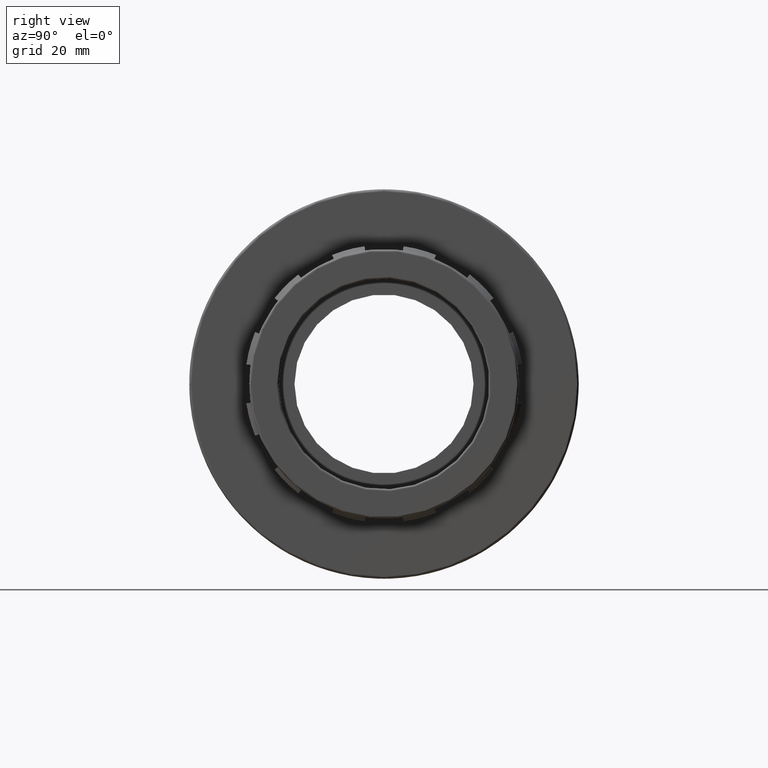
[diagram: clean part render]
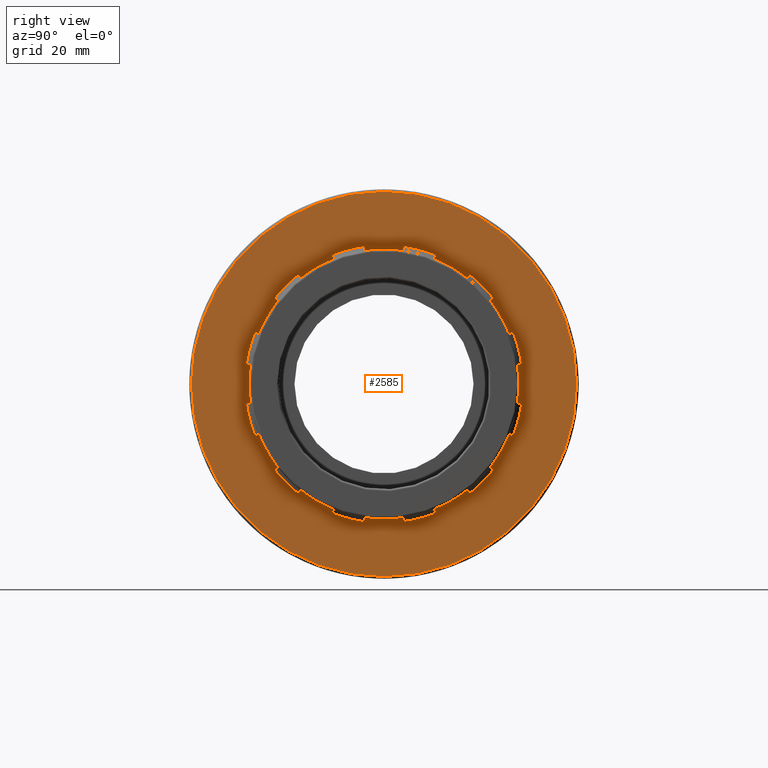
[diagram: same view with one face highlighted and labeled with its STEP entity id]
A machine part, right view. The second image highlights one B-rep face of the part: STEP entity #2585.
In plain terms, the highlighted planar face has unit normal (1, 0, 0).
Its self-contained STEP definition (entity closure, byte-faithful):
#51=FACE_BOUND('',#482,.T.);
#156=CIRCLE('',#2767,25.70832);
#157=CIRCLE('',#2769,25.70832);
#159=CIRCLE('',#2772,25.70832);
#161=CIRCLE('',#2775,25.70832);
#163=CIRCLE('',#2778,25.70832);
#165=CIRCLE('',#2781,25.70832);
#167=CIRCLE('',#2784,25.70832);
#169=CIRCLE('',#2787,25.70832);
#171=CIRCLE('',#2790,25.70832);
#173=CIRCLE('',#2793,25.70832);
#175=CIRCLE('',#2796,25.70832);
#190=CIRCLE('',#2824,25.70832);
#191=CIRCLE('',#2827,35.61048);
#192=CIRCLE('',#2829,24.92928);
#193=CIRCLE('',#2830,24.92928);
#194=CIRCLE('',#2831,24.92928);
#195=CIRCLE('',#2832,24.92928);
#196=CIRCLE('',#2833,24.92928);
#197=CIRCLE('',#2834,24.92928);
#198=CIRCLE('',#2835,24.92928);
#199=CIRCLE('',#2836,24.92928);
#200=CIRCLE('',#2837,24.92928);
#201=CIRCLE('',#2838,24.92928);
#202=CIRCLE('',#2839,24.92928);
#203=CIRCLE('',#2840,24.92928);
#339=FACE_OUTER_BOUND('',#481,.T.);
#481=EDGE_LOOP('',(#2163));
#482=EDGE_LOOP('',(#2164,#2165,#2166,#2167,#2168,#2169,#2170,#2171,#2172,
#2173,#2174,#2175,#2176,#2177,#2178,#2179,#2180,#2181,#2182,#2183,#2184,
#2185,#2186,#2187,#2188,#2189,#2190,#2191,#2192,#2193,#2194,#2195,#2196,
#2197,#2198,#2199,#2200,#2201,#2202,#2203,#2204,#2205,#2206,#2207,#2208,
#2209,#2210,#2211));
#670=LINE('',#4092,#912);
#674=LINE('',#4101,#916);
#678=LINE('',#4110,#920);
#682=LINE('',#4119,#924);
#686=LINE('',#4128,#928);
#690=LINE('',#4137,#932);
#694=LINE('',#4146,#936);
#698=LINE('',#4155,#940);
#702=LINE('',#4164,#944);
#706=LINE('',#4173,#948);
#710=LINE('',#4182,#952);
#714=LINE('',#4191,#956);
#718=LINE('',#4200,#960);
#722=LINE('',#4209,#964);
#726=LINE('',#4218,#968);
#730=LINE('',#4227,#972);
#734=LINE('',#4236,#976);
#738=LINE('',#4245,#980);
#742=LINE('',#4254,#984);
#746=LINE('',#4263,#988);
#750=LINE('',#4272,#992);
#754=LINE('',#4281,#996);
#761=LINE('',#4356,#1003);
#762=LINE('',#4374,#1004);
#912=VECTOR('',#3297,0.77904000000001);
#916=VECTOR('',#3303,0.77904000000001);
#920=VECTOR('',#3309,0.77904000000001);
#924=VECTOR('',#3315,0.77904000000001);
#928=VECTOR('',#3321,0.77904000000001);
#932=VECTOR('',#3327,0.77904000000001);
#936=VECTOR('',#3333,0.77904000000001);
#940=VECTOR('',#3339,0.77904000000001);
#944=VECTOR('',#3345,0.77904000000001);
#948=VECTOR('',#3351,0.77904000000001);
#952=VECTOR('',#3357,0.77904000000001);
#956=VECTOR('',#3363,0.77904000000001);
#960=VECTOR('',#3369,0.77904000000001);
#964=VECTOR('',#3375,0.77904000000001);
#968=VECTOR('',#3381,0.77904000000001);
#972=VECTOR('',#3387,0.77904000000001);
#976=VECTOR('',#3393,0.77904000000001);
#980=VECTOR('',#3399,0.77904000000001);
#984=VECTOR('',#3405,0.77904000000001);
#988=VECTOR('',#3411,0.77904000000001);
#992=VECTOR('',#3417,0.77904000000001);
#996=VECTOR('',#3423,0.77904000000001);
#1003=VECTOR('',#3552,0.77904000000001);
#1004=VECTOR('',#3583,0.77904000000001);
#1150=VERTEX_POINT('',#4089);
#1151=VERTEX_POINT('',#4091);
#1154=VERTEX_POINT('',#4098);
#1155=VERTEX_POINT('',#4100);
#1158=VERTEX_POINT('',#4107);
#1159=VERTEX_POINT('',#4109);
#1162=VERTEX_POINT('',#4116);
#1163=VERTEX_POINT('',#4118);
#1166=VERTEX_POINT('',#4125);
#1167=VERTEX_POINT('',#4127);
#1170=VERTEX_POINT('',#4134);
#1171=VERTEX_POINT('',#4136);
#1174=VERTEX_POINT('',#4143);
#1175=VERTEX_POINT('',#4145);
#1178=VERTEX_POINT('',#4152);
#1179=VERTEX_POINT('',#4154);
#1182=VERTEX_POINT('',#4161);
#1183=VERTEX_POINT('',#4163);
#1186=VERTEX_POINT('',#4170);
#1187=VERTEX_POINT('',#4172);
#1190=VERTEX_POINT('',#4179);
#1191=VERTEX_POINT('',#4181);
#1194=VERTEX_POINT('',#4188);
#1195=VERTEX_POINT('',#4190);
#1198=VERTEX_POINT('',#4197);
#1199=VERTEX_POINT('',#4199);
#1202=VERTEX_POINT('',#4206);
#1203=VERTEX_POINT('',#4208);
#1206=VERTEX_POINT('',#4215);
#1207=VERTEX_POINT('',#4217);
#1210=VERTEX_POINT('',#4224);
#1211=VERTEX_POINT('',#4226);
#1214=VERTEX_POINT('',#4233);
#1215=VERTEX_POINT('',#4235);
#1218=VERTEX_POINT('',#4242);
#1219=VERTEX_POINT('',#4244);
#1222=VERTEX_POINT('',#4251);
#1223=VERTEX_POINT('',#4253);
#1226=VERTEX_POINT('',#4260);
#1227=VERTEX_POINT('',#4262);
#1230=VERTEX_POINT('',#4269);
#1231=VERTEX_POINT('',#4271);
#1234=VERTEX_POINT('',#4278);
#1235=VERTEX_POINT('',#4280);
#1237=VERTEX_POINT('',#4286);
#1238=VERTEX_POINT('',#4290);
#1242=VERTEX_POINT('',#4354);
#1243=VERTEX_POINT('',#4358);
#1244=VERTEX_POINT('',#4372);
#1473=EDGE_CURVE('',#1150,#1151,#670,.T.);
#1477=EDGE_CURVE('',#1154,#1155,#674,.T.);
#1481=EDGE_CURVE('',#1158,#1159,#678,.T.);
#1485=EDGE_CURVE('',#1162,#1163,#682,.T.);
#1489=EDGE_CURVE('',#1166,#1167,#686,.T.);
#1493=EDGE_CURVE('',#1170,#1171,#690,.T.);
#1497=EDGE_CURVE('',#1174,#1175,#694,.T.);
#1501=EDGE_CURVE('',#1178,#1179,#698,.T.);
#1505=EDGE_CURVE('',#1182,#1183,#702,.T.);
#1509=EDGE_CURVE('',#1186,#1187,#706,.T.);
#1513=EDGE_CURVE('',#1190,#1191,#710,.T.);
#1517=EDGE_CURVE('',#1194,#1195,#714,.T.);
#1521=EDGE_CURVE('',#1198,#1199,#718,.T.);
#1525=EDGE_CURVE('',#1202,#1203,#722,.T.);
#1529=EDGE_CURVE('',#1206,#1207,#726,.T.);
#1533=EDGE_CURVE('',#1210,#1211,#730,.T.);
#1537=EDGE_CURVE('',#1214,#1215,#734,.T.);
#1541=EDGE_CURVE('',#1218,#1219,#738,.T.);
#1545=EDGE_CURVE('',#1222,#1223,#742,.T.);
#1549=EDGE_CURVE('',#1226,#1227,#746,.T.);
#1553=EDGE_CURVE('',#1230,#1231,#750,.T.);
#1557=EDGE_CURVE('',#1234,#1235,#754,.T.);
#1561=EDGE_CURVE('',#1150,#1237,#156,.T.);
#1562=EDGE_CURVE('',#1238,#1235,#157,.T.);
#1565=EDGE_CURVE('',#1230,#1227,#159,.T.);
#1567=EDGE_CURVE('',#1222,#1219,#161,.T.);
#1569=EDGE_CURVE('',#1214,#1211,#163,.T.);
#1571=EDGE_CURVE('',#1206,#1203,#165,.T.);
#1573=EDGE_CURVE('',#1198,#1195,#167,.T.);
#1575=EDGE_CURVE('',#1190,#1187,#169,.T.);
#1577=EDGE_CURVE('',#1182,#1179,#171,.T.);
#1579=EDGE_CURVE('',#1174,#1171,#173,.T.);
#1581=EDGE_CURVE('',#1166,#1163,#175,.T.);
#1598=EDGE_CURVE('',#1158,#1155,#190,.T.);
#1600=EDGE_CURVE('',#1242,#1237,#761,.T.);
#1601=EDGE_CURVE('',#1243,#1243,#191,.T.);
#1602=EDGE_CURVE('',#1231,#1234,#192,.T.);
#1603=EDGE_CURVE('',#1223,#1226,#193,.T.);
#1604=EDGE_CURVE('',#1215,#1218,#194,.T.);
#1605=EDGE_CURVE('',#1207,#1210,#195,.T.);
#1606=EDGE_CURVE('',#1199,#1202,#196,.T.);
#1607=EDGE_CURVE('',#1191,#1194,#197,.T.);
#1608=EDGE_CURVE('',#1183,#1186,#198,.T.);
#1609=EDGE_CURVE('',#1175,#1178,#199,.T.);
#1610=EDGE_CURVE('',#1167,#1170,#200,.T.);
#1611=EDGE_CURVE('',#1159,#1162,#201,.T.);
#1612=EDGE_CURVE('',#1151,#1154,#202,.T.);
#1613=EDGE_CURVE('',#1244,#1242,#203,.T.);
#1614=EDGE_CURVE('',#1238,#1244,#762,.T.);
#2163=ORIENTED_EDGE('',*,*,#1601,.F.);
#2164=ORIENTED_EDGE('',*,*,#1562,.T.);
#2165=ORIENTED_EDGE('',*,*,#1557,.F.);
#2166=ORIENTED_EDGE('',*,*,#1602,.F.);
#2167=ORIENTED_EDGE('',*,*,#1553,.F.);
#2168=ORIENTED_EDGE('',*,*,#1565,.T.);
#2169=ORIENTED_EDGE('',*,*,#1549,.F.);
#2170=ORIENTED_EDGE('',*,*,#1603,.F.);
#2171=ORIENTED_EDGE('',*,*,#1545,.F.);
#2172=ORIENTED_EDGE('',*,*,#1567,.T.);
#2173=ORIENTED_EDGE('',*,*,#1541,.F.);
#2174=ORIENTED_EDGE('',*,*,#1604,.F.);
#2175=ORIENTED_EDGE('',*,*,#1537,.F.);
#2176=ORIENTED_EDGE('',*,*,#1569,.T.);
#2177=ORIENTED_EDGE('',*,*,#1533,.F.);
#2178=ORIENTED_EDGE('',*,*,#1605,.F.);
#2179=ORIENTED_EDGE('',*,*,#1529,.F.);
#2180=ORIENTED_EDGE('',*,*,#1571,.T.);
#2181=ORIENTED_EDGE('',*,*,#1525,.F.);
#2182=ORIENTED_EDGE('',*,*,#1606,.F.);
#2183=ORIENTED_EDGE('',*,*,#1521,.F.);
#2184=ORIENTED_EDGE('',*,*,#1573,.T.);
#2185=ORIENTED_EDGE('',*,*,#1517,.F.);
#2186=ORIENTED_EDGE('',*,*,#1607,.F.);
#2187=ORIENTED_EDGE('',*,*,#1513,.F.);
#2188=ORIENTED_EDGE('',*,*,#1575,.T.);
#2189=ORIENTED_EDGE('',*,*,#1509,.F.);
#2190=ORIENTED_EDGE('',*,*,#1608,.F.);
#2191=ORIENTED_EDGE('',*,*,#1505,.F.);
#2192=ORIENTED_EDGE('',*,*,#1577,.T.);
#2193=ORIENTED_EDGE('',*,*,#1501,.F.);
#2194=ORIENTED_EDGE('',*,*,#1609,.F.);
#2195=ORIENTED_EDGE('',*,*,#1497,.F.);
#2196=ORIENTED_EDGE('',*,*,#1579,.T.);
#2197=ORIENTED_EDGE('',*,*,#1493,.F.);
#2198=ORIENTED_EDGE('',*,*,#1610,.F.);
#2199=ORIENTED_EDGE('',*,*,#1489,.F.);
#2200=ORIENTED_EDGE('',*,*,#1581,.T.);
#2201=ORIENTED_EDGE('',*,*,#1485,.F.);
#2202=ORIENTED_EDGE('',*,*,#1611,.F.);
#2203=ORIENTED_EDGE('',*,*,#1481,.F.);
#2204=ORIENTED_EDGE('',*,*,#1598,.T.);
#2205=ORIENTED_EDGE('',*,*,#1477,.F.);
#2206=ORIENTED_EDGE('',*,*,#1612,.F.);
#2207=ORIENTED_EDGE('',*,*,#1473,.F.);
#2208=ORIENTED_EDGE('',*,*,#1561,.T.);
#2209=ORIENTED_EDGE('',*,*,#1600,.F.);
#2210=ORIENTED_EDGE('',*,*,#1613,.F.);
#2211=ORIENTED_EDGE('',*,*,#1614,.F.);
#2457=PLANE('',#2828);
#2585=ADVANCED_FACE('',(#339,#51),#2457,.T.);
#2767=AXIS2_PLACEMENT_3D('',#4288,#3430,#3431);
#2769=AXIS2_PLACEMENT_3D('',#4291,#3434,#3435);
#2772=AXIS2_PLACEMENT_3D('',#4296,#3441,#3442);
#2775=AXIS2_PLACEMENT_3D('',#4299,#3447,#3448);
#2778=AXIS2_PLACEMENT_3D('',#4302,#3453,#3454);
#2781=AXIS2_PLACEMENT_3D('',#4305,#3459,#3460);
#2784=AXIS2_PLACEMENT_3D('',#4308,#3465,#3466);
#2787=AXIS2_PLACEMENT_3D('',#4311,#3471,#3472);
#2790=AXIS2_PLACEMENT_3D('',#4314,#3477,#3478);
#2793=AXIS2_PLACEMENT_3D('',#4317,#3483,#3484);
#2796=AXIS2_PLACEMENT_3D('',#4320,#3489,#3490);
#2824=AXIS2_PLACEMENT_3D('',#4352,#3547,#3548);
#2827=AXIS2_PLACEMENT_3D('',#4359,#3555,#3556);
#2828=AXIS2_PLACEMENT_3D('',#4360,#3557,#3558);
#2829=AXIS2_PLACEMENT_3D('',#4361,#3559,#3560);
#2830=AXIS2_PLACEMENT_3D('',#4362,#3561,#3562);
#2831=AXIS2_PLACEMENT_3D('',#4363,#3563,#3564);
#2832=AXIS2_PLACEMENT_3D('',#4364,#3565,#3566);
#2833=AXIS2_PLACEMENT_3D('',#4365,#3567,#3568);
#2834=AXIS2_PLACEMENT_3D('',#4366,#3569,#3570);
#2835=AXIS2_PLACEMENT_3D('',#4367,#3571,#3572);
#2836=AXIS2_PLACEMENT_3D('',#4368,#3573,#3574);
#2837=AXIS2_PLACEMENT_3D('',#4369,#3575,#3576);
#2838=AXIS2_PLACEMENT_3D('',#4370,#3577,#3578);
#2839=AXIS2_PLACEMENT_3D('',#4371,#3579,#3580);
#2840=AXIS2_PLACEMENT_3D('',#4373,#3581,#3582);
#3297=DIRECTION('',(1.71931063678719E-16,-0.927508620892471,-0.373801763198284));
#3303=DIRECTION('',(-1.4967375632593E-16,0.787476133355363,0.61634514632281));
#3309=DIRECTION('',(1.22473532699534E-16,-0.616345146322809,-0.787476133355365));
#3315=DIRECTION('',(-8.39227455248271E-17,0.373801763198282,0.927508620892472));
#3321=DIRECTION('',(4.67665490625536E-17,-0.140032487537108,-0.990146909521092));
#3327=DIRECTION('',(-2.25193435697514E-18,-0.140032487537109,0.990146909521092));
#3333=DIRECTION('',(-3.49042621052985E-17,0.373801763198284,-0.927508620892471));
#3339=DIRECTION('',(7.34550492800058E-17,-0.61634514632281,0.787476133355363));
#3345=DIRECTION('',(-1.00655272906401E-16,0.787476133355364,-0.616345146322809));
#3351=DIRECTION('',(1.2291258025919E-16,-0.927508620892472,0.373801763198282));
#3357=DIRECTION('',(-1.32868553095068E-16,0.990146909521092,-0.140032487537108));
#3363=DIRECTION('',(1.32868553095068E-16,-0.990146909521092,-0.140032487537109));
#3369=DIRECTION('',(-1.2291258025919E-16,0.927508620892471,0.373801763198283));
#3375=DIRECTION('',(1.00655272906401E-16,-0.787476133355363,-0.61634514632281));
#3381=DIRECTION('',(-7.34550492800056E-17,0.616345146322809,0.787476133355364));
#3387=DIRECTION('',(3.49042621052983E-17,-0.373801763198282,-0.927508620892472));
#3393=DIRECTION('',(2.25193435697528E-18,0.140032487537108,0.990146909521092));
#3399=DIRECTION('',(-4.67665490625537E-17,0.140032487537109,-0.990146909521092));
#3405=DIRECTION('',(8.39227455248274E-17,-0.373801763198283,0.927508620892472));
#3411=DIRECTION('',(-1.22473532699535E-16,0.61634514632281,-0.787476133355364));
#3417=DIRECTION('',(1.4967375632593E-16,-0.787476133355364,0.616345146322809));
#3423=DIRECTION('',(-1.71931063678719E-16,0.927508620892472,-0.373801763198282));
#3430=DIRECTION('center_axis',(-1.,-1.83697019872103E-16,0.));
#3431=DIRECTION('ref_axis',(0.,0.,1.));
#3434=DIRECTION('center_axis',(-1.,-1.83697019872103E-16,0.));
#3435=DIRECTION('ref_axis',(0.,0.,1.));
#3441=DIRECTION('center_axis',(-1.,-1.83697019872103E-16,0.));
#3442=DIRECTION('ref_axis',(0.,0.,1.));
#3447=DIRECTION('center_axis',(-1.,-1.83697019872103E-16,0.));
#3448=DIRECTION('ref_axis',(0.,0.,1.));
#3453=DIRECTION('center_axis',(-1.,-1.83697019872103E-16,0.));
#3454=DIRECTION('ref_axis',(0.,0.,1.));
#3459=DIRECTION('center_axis',(-1.,-1.83697019872103E-16,0.));
#3460=DIRECTION('ref_axis',(0.,0.,1.));
#3465=DIRECTION('center_axis',(-1.,-1.83697019872103E-16,0.));
#3466=DIRECTION('ref_axis',(0.,0.,1.));
#3471=DIRECTION('center_axis',(-1.,-1.83697019872103E-16,0.));
#3472=DIRECTION('ref_axis',(0.,0.,1.));
#3477=DIRECTION('center_axis',(-1.,-1.83697019872103E-16,0.));
#3478=DIRECTION('ref_axis',(0.,0.,1.));
#3483=DIRECTION('center_axis',(-1.,-1.83697019872103E-16,0.));
#3484=DIRECTION('ref_axis',(0.,0.,1.));
#3489=DIRECTION('center_axis',(-1.,-1.83697019872103E-16,0.));
#3490=DIRECTION('ref_axis',(0.,0.,1.));
#3547=DIRECTION('center_axis',(-1.,-1.83697019872103E-16,0.));
#3548=DIRECTION('ref_axis',(0.,0.,1.));
#3552=DIRECTION('',(-1.81887036514597E-16,0.990146909521092,0.140032487537108));
#3555=DIRECTION('center_axis',(-1.,-1.83697019872103E-16,0.));
#3556=DIRECTION('ref_axis',(-1.83697019872103E-16,1.,6.12323399573677E-17));
#3557=DIRECTION('center_axis',(1.,1.83697019872103E-16,0.));
#3558=DIRECTION('ref_axis',(0.,0.,-1.));
#3559=DIRECTION('center_axis',(1.,1.80380728390465E-16,-1.2376568302182E-17));
#3560=DIRECTION('ref_axis',(-7.94719416338695E-17,0.5,0.866025403784439));
#3561=DIRECTION('center_axis',(1.,1.71320451569921E-16,-2.14368451227257E-17));
#3562=DIRECTION('ref_axis',(-1.3764944068601E-16,0.866025403784439,0.5));
#3563=DIRECTION('center_axis',(1.,1.58943883267739E-16,-2.4753136604364E-17));
#3564=DIRECTION('ref_axis',(-1.58943883267739E-16,1.,8.90698026276857E-17));
#3565=DIRECTION('center_axis',(1.,1.46567314965557E-16,-2.14368451227257E-17));
#3566=DIRECTION('ref_axis',(-1.3764944068601E-16,0.866025403784439,-0.5));
#3567=DIRECTION('center_axis',(1.,1.37507038145013E-16,-1.2376568302182E-17));
#3568=DIRECTION('ref_axis',(-7.94719416338695E-17,0.5,-0.866025403784438));
#3569=DIRECTION('center_axis',(1.,1.34190746663375E-16,-3.08148791101958E-33));
#3570=DIRECTION('ref_axis',(-9.88873456760749E-33,8.90698026276857E-17,
-1.));
#3571=DIRECTION('center_axis',(1.,1.37507038145013E-16,1.2376568302182E-17));
#3572=DIRECTION('ref_axis',(7.94719416338694E-17,-0.5,-0.866025403784439));
#3573=DIRECTION('center_axis',(1.,1.46567314965557E-16,2.14368451227257E-17));
#3574=DIRECTION('ref_axis',(1.3764944068601E-16,-0.866025403784438,-0.5));
#3575=DIRECTION('center_axis',(1.,1.58943883267739E-16,2.4753136604364E-17));
#3576=DIRECTION('ref_axis',(1.58943883267739E-16,-1.,-1.78139605255371E-16));
#3577=DIRECTION('center_axis',(1.,1.71320451569921E-16,2.14368451227257E-17));
#3578=DIRECTION('ref_axis',(1.3764944068601E-16,-0.866025403784439,0.499999999999999));
#3579=DIRECTION('center_axis',(1.,1.80380728390465E-16,1.2376568302182E-17));
#3580=DIRECTION('ref_axis',(7.94719416338695E-17,-0.5,0.866025403784438));
#3581=DIRECTION('center_axis',(1.,1.83697019872103E-16,0.));
#3582=DIRECTION('ref_axis',(0.,0.,1.));
#3583=DIRECTION('',(1.81887036514597E-16,-0.990146909521092,0.140032487537108));
#4089=CARTESIAN_POINT('',(28.,23.8446884286624,9.60981534486568));
#4091=CARTESIAN_POINT('',(28.,23.1221221126423,9.31860881926368));
#4092=CARTESIAN_POINT('',(28.,23.4919598944161,9.46765974106685));
#4098=CARTESIAN_POINT('',(28.,19.6312130217332,15.3650407293223));
#4100=CARTESIAN_POINT('',(28.,20.2446884286624,15.8451982521136));
#4101=CARTESIAN_POINT('',(28.,19.6384760938946,15.3707254213205));
#4107=CARTESIAN_POINT('',(28.,15.8451982521136,20.2446884286624));
#4109=CARTESIAN_POINT('',(28.,15.3650407293223,19.6312130217332));
#4110=CARTESIAN_POINT('',(28.,15.6108041827162,19.9452137973592));
#4116=CARTESIAN_POINT('',(28.,9.31860881926367,23.1221221126423));
#4118=CARTESIAN_POINT('',(28.,9.60981534486566,23.8446884286624));
#4119=CARTESIAN_POINT('',(28.,9.32205647826584,23.1306767364061));
#4125=CARTESIAN_POINT('',(28.,3.60000000000001,25.4550135969793));
#4127=CARTESIAN_POINT('',(28.,3.4909090909091,24.683649548586));
#4128=CARTESIAN_POINT('',(28.,3.54674609705699,25.078463923783));
#4134=CARTESIAN_POINT('',(28.,-3.49090909090908,24.683649548586));
#4136=CARTESIAN_POINT('',(28.,-3.59999999999999,25.4550135969793));
#4137=CARTESIAN_POINT('',(28.,-3.49220064251152,24.6927818995863));
#4143=CARTESIAN_POINT('',(28.,-9.60981534486567,23.8446884286624));
#4145=CARTESIAN_POINT('',(28.,-9.31860881926367,23.1221221126423));
#4146=CARTESIAN_POINT('',(28.,-9.46765974106684,23.4919598944161));
#4152=CARTESIAN_POINT('',(28.,-15.3650407293223,19.6312130217332));
#4154=CARTESIAN_POINT('',(28.,-15.8451982521136,20.2446884286624));
#4155=CARTESIAN_POINT('',(28.,-15.3707254213205,19.6384760938946));
#4161=CARTESIAN_POINT('',(28.,-20.2446884286624,15.8451982521136));
#4163=CARTESIAN_POINT('',(28.,-19.6312130217332,15.3650407293223));
#4164=CARTESIAN_POINT('',(28.,-19.9452137973591,15.6108041827162));
#4170=CARTESIAN_POINT('',(28.,-23.1221221126423,9.31860881926367));
#4172=CARTESIAN_POINT('',(28.,-23.8446884286624,9.60981534486566));
#4173=CARTESIAN_POINT('',(28.,-23.1306767364061,9.32205647826584));
#4179=CARTESIAN_POINT('',(28.,-25.4550135969793,3.6));
#4181=CARTESIAN_POINT('',(28.,-24.683649548586,3.49090909090909));
#4182=CARTESIAN_POINT('',(28.,-25.078463923783,3.54674609705698));
#4188=CARTESIAN_POINT('',(28.,-24.683649548586,-3.49090909090909));
#4190=CARTESIAN_POINT('',(28.,-25.4550135969793,-3.60000000000001));
#4191=CARTESIAN_POINT('',(28.,-24.6927818995863,-3.49220064251153));
#4197=CARTESIAN_POINT('',(28.,-23.8446884286624,-9.60981534486567));
#4199=CARTESIAN_POINT('',(28.,-23.1221221126423,-9.31860881926368));
#4200=CARTESIAN_POINT('',(28.,-23.4919598944161,-9.46765974106685));
#4206=CARTESIAN_POINT('',(28.,-19.6312130217332,-15.3650407293223));
#4208=CARTESIAN_POINT('',(28.,-20.2446884286624,-15.8451982521136));
#4209=CARTESIAN_POINT('',(28.,-19.6384760938946,-15.3707254213205));
#4215=CARTESIAN_POINT('',(28.,-15.8451982521136,-20.2446884286624));
#4217=CARTESIAN_POINT('',(28.,-15.3650407293223,-19.6312130217332));
#4218=CARTESIAN_POINT('',(28.,-15.6108041827161,-19.9452137973592));
#4224=CARTESIAN_POINT('',(28.,-9.31860881926366,-23.1221221126423));
#4226=CARTESIAN_POINT('',(28.,-9.60981534486565,-23.8446884286624));
#4227=CARTESIAN_POINT('',(28.,-9.32205647826583,-23.1306767364061));
#4233=CARTESIAN_POINT('',(28.,-3.59999999999999,-25.4550135969793));
#4235=CARTESIAN_POINT('',(28.,-3.49090909090907,-24.683649548586));
#4236=CARTESIAN_POINT('',(28.,-3.54674609705697,-25.078463923783));
#4242=CARTESIAN_POINT('',(28.,3.4909090909091,-24.683649548586));
#4244=CARTESIAN_POINT('',(28.,3.60000000000002,-25.4550135969793));
#4245=CARTESIAN_POINT('',(28.,3.49220064251155,-24.6927818995863));
#4251=CARTESIAN_POINT('',(28.,9.60981534486568,-23.8446884286624));
#4253=CARTESIAN_POINT('',(28.,9.31860881926369,-23.1221221126423));
#4254=CARTESIAN_POINT('',(28.,9.46765974106686,-23.4919598944161));
#4260=CARTESIAN_POINT('',(28.,15.3650407293223,-19.6312130217332));
#4262=CARTESIAN_POINT('',(28.,15.8451982521136,-20.2446884286624));
#4263=CARTESIAN_POINT('',(28.,15.3707254213205,-19.6384760938946));
#4269=CARTESIAN_POINT('',(28.,20.2446884286624,-15.8451982521136));
#4271=CARTESIAN_POINT('',(28.,19.6312130217332,-15.3650407293223));
#4272=CARTESIAN_POINT('',(28.,19.9452137973592,-15.6108041827162));
#4278=CARTESIAN_POINT('',(28.,23.1221221126423,-9.31860881926367));
#4280=CARTESIAN_POINT('',(28.,23.8446884286624,-9.60981534486567));
#4281=CARTESIAN_POINT('',(28.,23.1306767364061,-9.32205647826584));
#4286=CARTESIAN_POINT('',(28.,25.4550135969793,3.6));
#4288=CARTESIAN_POINT('Origin',(28.,1.33180339407275E-14,0.));
#4290=CARTESIAN_POINT('',(28.,25.4550135969793,-3.6));
#4291=CARTESIAN_POINT('Origin',(28.,1.33180339407275E-14,0.));
#4296=CARTESIAN_POINT('Origin',(28.,1.33180339407275E-14,0.));
#4299=CARTESIAN_POINT('Origin',(28.,1.33180339407275E-14,0.));
#4302=CARTESIAN_POINT('Origin',(28.,1.33180339407275E-14,0.));
#4305=CARTESIAN_POINT('Origin',(28.,1.33180339407275E-14,0.));
#4308=CARTESIAN_POINT('Origin',(28.,1.33180339407275E-14,0.));
#4311=CARTESIAN_POINT('Origin',(28.,1.33180339407275E-14,0.));
#4314=CARTESIAN_POINT('Origin',(28.,1.33180339407275E-14,0.));
#4317=CARTESIAN_POINT('Origin',(28.,1.33180339407275E-14,0.));
#4320=CARTESIAN_POINT('Origin',(28.,1.33180339407275E-14,0.));
#4352=CARTESIAN_POINT('Origin',(28.,1.33180339407275E-14,0.));
#4354=CARTESIAN_POINT('',(28.,24.683649548586,3.49090909090909));
#4356=CARTESIAN_POINT('',(28.,24.6927818995864,3.49220064251153));
#4358=CARTESIAN_POINT('',(28.,-35.61048,2.18051301740504E-15));
#4359=CARTESIAN_POINT('Origin',(28.,1.33180339407275E-14,0.));
#4360=CARTESIAN_POINT('Origin',(28.,-36.,0.));
#4361=CARTESIAN_POINT('Origin',(28.,1.30527290633747E-14,2.5535613744194E-16));
#4362=CARTESIAN_POINT('Origin',(28.,1.32396627300067E-14,4.42289804073982E-16));
#4363=CARTESIAN_POINT('Origin',(28.,1.34950188674487E-14,5.1071227488388E-16));
#4364=CARTESIAN_POINT('Origin',(28.,1.37503750048906E-14,4.42289804073984E-16));
#4365=CARTESIAN_POINT('Origin',(28.,1.39373086715227E-14,2.55356137441941E-16));
#4366=CARTESIAN_POINT('Origin',(28.,1.40057311423326E-14,-1.97215226305253E-30));
#4367=CARTESIAN_POINT('Origin',(28.,1.39373086715227E-14,-2.5535613744194E-16));
#4368=CARTESIAN_POINT('Origin',(28.,1.37503750048906E-14,-4.42289804073984E-16));
#4369=CARTESIAN_POINT('Origin',(28.,1.34950188674487E-14,-5.10712274883881E-16));
#4370=CARTESIAN_POINT('Origin',(28.,1.32396627300067E-14,-4.42289804073982E-16));
#4371=CARTESIAN_POINT('Origin',(28.,1.30527290633747E-14,-2.5535613744194E-16));
#4372=CARTESIAN_POINT('',(28.,24.683649548586,-3.49090909090909));
#4373=CARTESIAN_POINT('Origin',(28.,1.29843065925648E-14,0.));
#4374=CARTESIAN_POINT('',(28.,25.078463923783,-3.54674609705699));